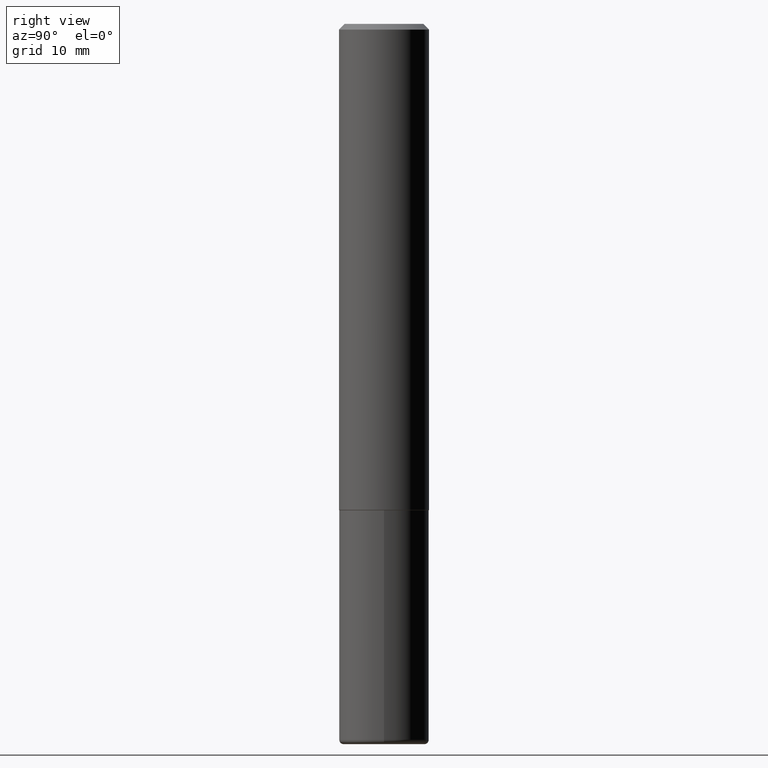
[diagram: clean part render]
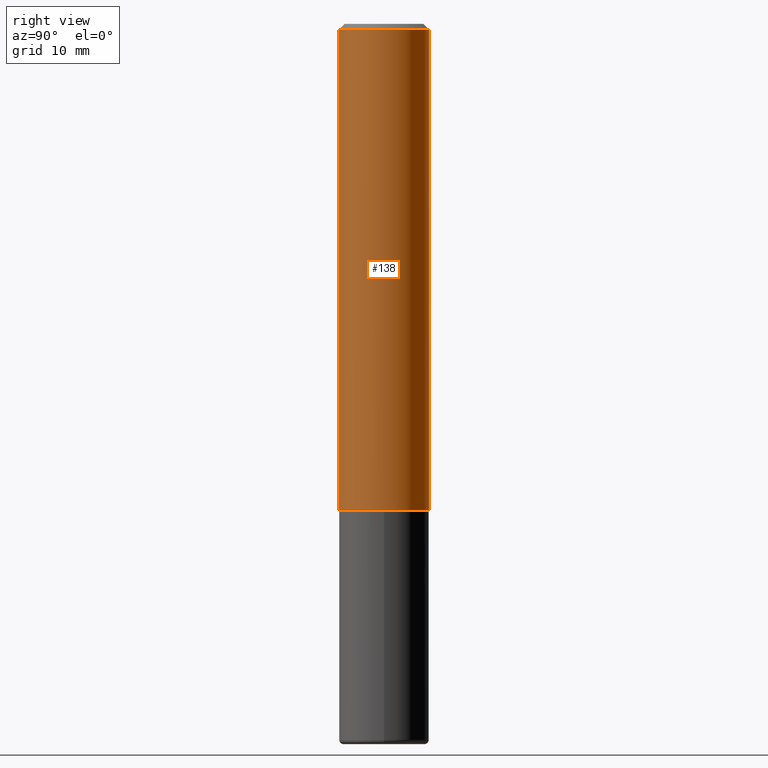
[diagram: same view with one face highlighted and labeled with its STEP entity id]
A machine part, right view. The second image highlights one B-rep face of the part: STEP entity #138.
In plain terms, the highlighted cylindrical surface (partial cylindrical patch) has radius 3.9688 mm, axis along (-0, 0, 1).
Its self-contained STEP definition (entity closure, byte-faithful):
#4 = CYLINDRICAL_SURFACE ( 'NONE', #301, 0.1562500000000001110 ) ;
#8 = CARTESIAN_POINT ( 'NONE',  ( 1.091087918388479568E-15, 0.1562499999999999445, -0.02000000000000057981 ) ) ;
#42 = EDGE_CURVE ( 'NONE', #131, #202, #380, .T. ) ;
#43 = CARTESIAN_POINT ( 'NONE',  ( 1.110223024625178234E-15, 0.1562499999999943101, -1.687000000000000499 ) ) ;
#62 = LINE ( 'NONE', #119, #370 ) ;
#87 = EDGE_LOOP ( 'NONE', ( #412, #416, #144, #409 ) ) ;
#100 = CARTESIAN_POINT ( 'NONE',  ( 0.000000000000000000, 0.000000000000000000, 0.000000000000000000 ) ) ;
#101 = VERTEX_POINT ( 'NONE', #320 ) ;
#119 = CARTESIAN_POINT ( 'NONE',  ( -1.091087918388479765E-15, -0.1562500000000001110, 5.456387379424272725E-16 ) ) ;
#131 = VERTEX_POINT ( 'NONE', #43 ) ;
#138 = ADVANCED_FACE ( 'NONE', ( #293 ), #4, .T. ) ;
#142 = DIRECTION ( 'NONE',  ( -6.982962677686265133E-15, -1.000000000000000000, 3.496765431890256920E-15 ) ) ;
#144 = ORIENTED_EDGE ( 'NONE', *, *, #159, .F. ) ;
#155 = DIRECTION ( 'NONE',  ( -2.445045230849958565E-29, 3.492087922831531704E-15, 1.000000000000000000 ) ) ;
#156 = CARTESIAN_POINT ( 'NONE',  ( -1.091087918388439336E-15, -0.1562500000000061062, -1.686999999999999611 ) ) ;
#159 = EDGE_CURVE ( 'NONE', #101, #202, #193, .T. ) ;
#179 = AXIS2_PLACEMENT_3D ( 'NONE', #393, #191, #142 ) ;
#191 = DIRECTION ( 'NONE',  ( -2.445045230849958565E-29, 3.492087922831531704E-15, 1.000000000000000000 ) ) ;
#193 = CIRCLE ( 'NONE', #179, 0.1562500000000000000 ) ;
#202 = VERTEX_POINT ( 'NONE', #8 ) ;
#213 = CARTESIAN_POINT ( 'NONE',  ( 1.110223024625157132E-15, 0.1562500000000001110, -5.456387379424272725E-16 ) ) ;
#230 = DIRECTION ( 'NONE',  ( -2.445045230849958565E-29, 3.492087922831531704E-15, 1.000000000000000000 ) ) ;
#237 = CIRCLE ( 'NONE', #413, 0.1562500000000002220 ) ;
#238 = DIRECTION ( 'NONE',  ( -2.445045230849958565E-29, 3.492087922831532098E-15, 1.000000000000000000 ) ) ;
#245 = VECTOR ( 'NONE', #388, 39.37007874015748143 ) ;
#251 = DIRECTION ( 'NONE',  ( -6.982962677686265922E-15, -1.000000000000000000, 3.496765431890251792E-15 ) ) ;
#263 = VERTEX_POINT ( 'NONE', #156 ) ;
#269 = CARTESIAN_POINT ( 'NONE',  ( 4.124791304443880664E-29, -5.891152325816794336E-15, -1.687000000000000055 ) ) ;
#293 = FACE_OUTER_BOUND ( 'NONE', #87, .T. ) ;
#295 = DIRECTION ( 'NONE',  ( -6.982962677686265922E-15, -1.000000000000000000, 3.492087922831532098E-15 ) ) ;
#296 = EDGE_CURVE ( 'NONE', #263, #101, #62, .T. ) ;
#301 = AXIS2_PLACEMENT_3D ( 'NONE', #100, #155, #295 ) ;
#320 = CARTESIAN_POINT ( 'NONE',  ( -1.071952812151801215E-15, -0.1562500000000000833, -0.01999999999999948694 ) ) ;
#370 = VECTOR ( 'NONE', #238, 39.37007874015748143 ) ;
#380 = LINE ( 'NONE', #213, #245 ) ;
#388 = DIRECTION ( 'NONE',  ( -2.445045230849958565E-29, 3.492087922831532098E-15, 1.000000000000000000 ) ) ;
#393 = CARTESIAN_POINT ( 'NONE',  ( 4.890090461699924977E-31, -6.984175845663074797E-17, -0.02000000000000003511 ) ) ;
#407 = EDGE_CURVE ( 'NONE', #263, #131, #237, .T. ) ;
#409 = ORIENTED_EDGE ( 'NONE', *, *, #296, .F. ) ;
#412 = ORIENTED_EDGE ( 'NONE', *, *, #407, .T. ) ;
#413 = AXIS2_PLACEMENT_3D ( 'NONE', #269, #230, #251 ) ;
#416 = ORIENTED_EDGE ( 'NONE', *, *, #42, .T. ) ;